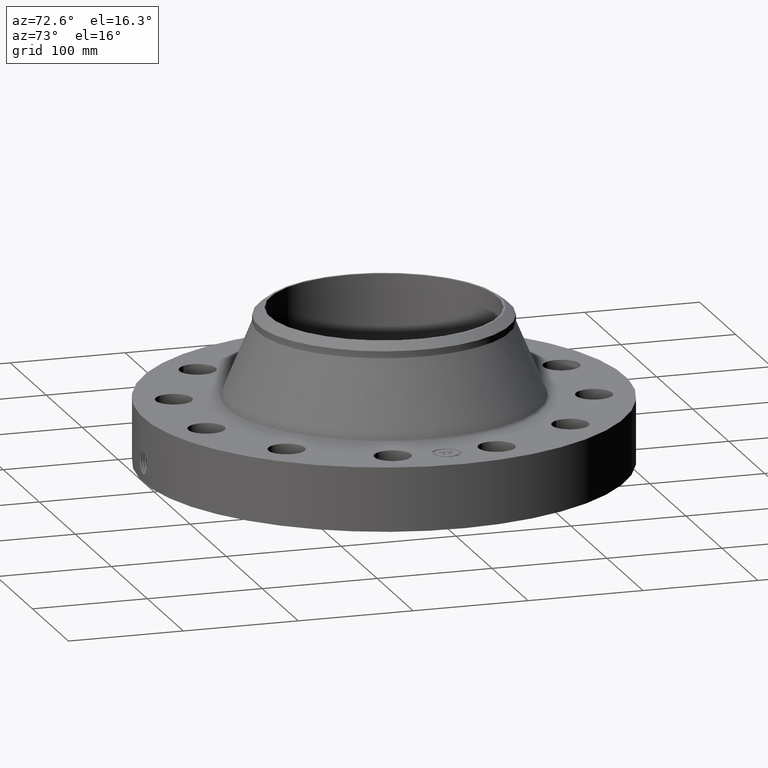
[diagram: clean part render]
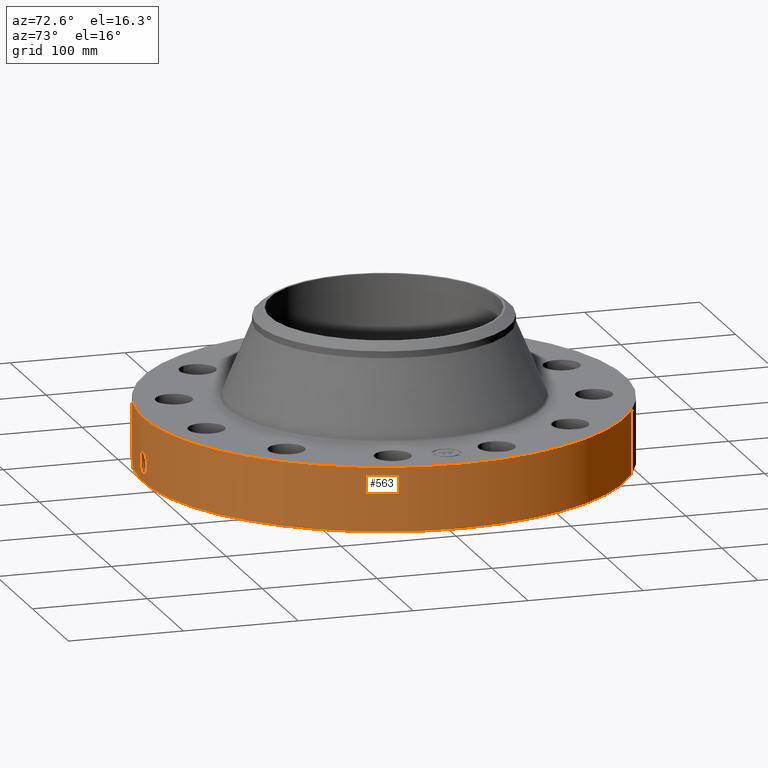
[diagram: same view with one face highlighted and labeled with its STEP entity id]
A machine part, auxiliary view. The second image highlights one B-rep face of the part: STEP entity #563.
In plain terms, the highlighted cylindrical surface (partial cylindrical patch) has radius 209.55 mm, axis along (0, 0, -1).
Its self-contained STEP definition (entity closure, byte-faithful):
#38=AXIS2_PLACEMENT_3D('Cylinder Axis2P3D',#35,#36,#37) ;
#169=AXIS2_PLACEMENT_3D('Circle Axis2P3D',#167,#168,$) ;
#467=AXIS2_PLACEMENT_3D('Circle Axis2P3D',#465,#466,$) ;
#35=CARTESIAN_POINT('Axis2P3D Location',(0.,0.,2.87500000001)) ;
#44=CARTESIAN_POINT('Vertex',(-3.9552606935,-7.24005613562,0.250000000001)) ;
#46=CARTESIAN_POINT('Vertex',(3.9552606935,7.24005613562,0.250000000001)) ;
#49=CARTESIAN_POINT('Line Origine',(-3.9552606935,-7.24005613562,1.34500000001)) ;
#53=CARTESIAN_POINT('Vertex',(-3.9552606935,-7.24005613562,2.44000000001)) ;
#60=CARTESIAN_POINT('Vertex',(3.9552606935,7.24005613562,2.44000000001)) ;
#63=CARTESIAN_POINT('Line Origine',(3.9552606935,7.24005613562,1.34500000001)) ;
#167=CARTESIAN_POINT('Axis2P3D Location',(0.,0.,0.250000000001)) ;
#465=CARTESIAN_POINT('Axis2P3D Location',(0.,0.,2.44000000001)) ;
#477=CARTESIAN_POINT('Control Point',(0.0585696128866,-8.24979209441,1.28923521611)) ;
#478=CARTESIAN_POINT('Control Point',(0.0394626526901,-8.24992774477,1.29244398859)) ;
#479=CARTESIAN_POINT('Control Point',(0.0200911592021,-8.24999828679,1.29407922484)) ;
#480=CARTESIAN_POINT('Control Point',(0.000716274479256,-8.24999996894,1.29411849877)) ;
#481=CARTESIAN_POINT('Vertex',(0.0585551594517,-8.24979245592,1.28923793039)) ;
#483=CARTESIAN_POINT('Vertex',(0.00071614293337,-8.24999996895,1.29411850921)) ;
#487=CARTESIAN_POINT('Control Point',(0.0585550548739,-8.24979219775,1.28923735404)) ;
#488=CARTESIAN_POINT('Control Point',(0.0977778610433,-8.24951380364,1.28434299913)) ;
#489=CARTESIAN_POINT('Control Point',(0.136232915897,-8.24895065119,1.27230088991)) ;
#490=CARTESIAN_POINT('Control Point',(0.171527588296,-8.24821667314,1.25401074387)) ;
#491=CARTESIAN_POINT('Vertex',(0.171527588296,-8.24821667314,1.25401074387)) ;
#495=CARTESIAN_POINT('Control Point',(0.0301661831778,-8.24994484842,0.531126499402)) ;
#496=CARTESIAN_POINT('Control Point',(0.0863158726556,-8.24973953531,0.53827173095)) ;
#497=CARTESIAN_POINT('Control Point',(0.140867393149,-8.24906236128,0.555888081743)) ;
#498=CARTESIAN_POINT('Control Point',(0.191063330913,-8.24797606518,0.583459203873)) ;
#499=CARTESIAN_POINT('Control Point',(0.264021348453,-8.24590958046,0.642874509219)) ;
#500=CARTESIAN_POINT('Control Point',(0.315833816603,-8.24398622769,0.719126077094)) ;
#501=CARTESIAN_POINT('Control Point',(0.332862825261,-8.2432996251,0.751799203192)) ;
#502=CARTESIAN_POINT('Control Point',(0.36822283739,-8.24181030791,0.843994369043)) ;
#503=CARTESIAN_POINT('Control Point',(0.374342967385,-8.24148913876,0.942643153853)) ;
#504=CARTESIAN_POINT('Control Point',(0.366209339775,-8.24188145626,1.00431542026)) ;
#505=CARTESIAN_POINT('Control Point',(0.333004984379,-8.24338775801,1.10218934415)) ;
#506=CARTESIAN_POINT('Control Point',(0.270471268152,-8.24562832491,1.18262256924)) ;
#507=CARTESIAN_POINT('Control Point',(0.240874299516,-8.24657783052,1.21132241964)) ;
#508=CARTESIAN_POINT('Control Point',(0.207549286232,-8.24746757606,1.23534384307)) ;
#509=CARTESIAN_POINT('Control Point',(0.171527588296,-8.24821667314,1.25401074387)) ;
#510=CARTESIAN_POINT('Vertex',(0.0301661831778,-8.24994484842,0.531126499402)) ;
#514=CARTESIAN_POINT('Control Point',(0.0301661831778,-8.24994484842,0.531126499402)) ;
#515=CARTESIAN_POINT('Control Point',(0.0201048323032,-8.24998163806,0.530865651291)) ;
#516=CARTESIAN_POINT('Control Point',(0.010038769677,-8.25000000335,0.530948524294)) ;
#517=CARTESIAN_POINT('Control Point',(-2.72878353728E-006,-8.25000000003,0.531374667805)) ;
#518=CARTESIAN_POINT('Vertex',(-2.72878353887E-006,-8.25000000003,0.531374667805)) ;
#522=CARTESIAN_POINT('Control Point',(-0.193376636571,-8.2477333539,0.586036260197)) ;
#523=CARTESIAN_POINT('Control Point',(-0.149296475202,-8.24876685886,0.561236554266)) ;
#524=CARTESIAN_POINT('Control Point',(-0.101176964589,-8.24958173649,0.54350144644)) ;
#525=CARTESIAN_POINT('Control Point',(-0.0508280469595,-8.24999998322,0.53353160539)) ;
#526=CARTESIAN_POINT('Control Point',(-2.72878353728E-006,-8.25000000003,0.531374667805)) ;
#527=CARTESIAN_POINT('Vertex',(-0.193376636571,-8.2477333539,0.586036260197)) ;
#531=CARTESIAN_POINT('Control Point',(-0.193376636571,-8.2477333539,0.586036260197)) ;
#532=CARTESIAN_POINT('Control Point',(-0.222475245683,-8.24705110692,0.602407273554)) ;
#533=CARTESIAN_POINT('Control Point',(-0.249928246363,-8.24627904485,0.621663590926)) ;
#534=CARTESIAN_POINT('Control Point',(-0.275330507789,-8.24545549083,0.643640136203)) ;
#535=CARTESIAN_POINT('Control Point',(-0.342403539939,-8.24304477496,0.715122773475)) ;
#536=CARTESIAN_POINT('Control Point',(-0.385376472243,-8.24103926985,0.804695804221)) ;
#537=CARTESIAN_POINT('Control Point',(-0.400616608865,-8.24025160308,0.869012310572)) ;
#538=CARTESIAN_POINT('Control Point',(-0.401714064006,-8.2402431258,0.983261200307)) ;
#539=CARTESIAN_POINT('Control Point',(-0.361790909741,-8.24209270966,1.08796883088)) ;
#540=CARTESIAN_POINT('Control Point',(-0.33760123949,-8.24316154871,1.12942392738)) ;
#541=CARTESIAN_POINT('Control Point',(-0.268614235745,-8.24586286825,1.21362504742)) ;
#542=CARTESIAN_POINT('Control Point',(-0.175473095031,-8.24840438088,1.26855126013)) ;
#543=CARTESIAN_POINT('Control Point',(-0.11801054163,-8.24948032514,1.28854420532)) ;
#544=CARTESIAN_POINT('Control Point',(-0.0585599402305,-8.25000018362,1.29702524082)) ;
#545=CARTESIAN_POINT('Control Point',(2.58579355367E-005,-8.24999999999,1.29415298433)) ;
#546=CARTESIAN_POINT('Vertex',(2.58579355329E-005,-8.24999999999,1.29415298433)) ;
#550=CARTESIAN_POINT('Control Point',(0.000716142923082,-8.24999996895,1.29411850919)) ;
#551=CARTESIAN_POINT('Control Point',(0.000371024410715,-8.24999999891,1.29413606204)) ;
#552=CARTESIAN_POINT('Control Point',(2.58579414898E-005,-8.24999999999,1.29415298433)) ;
#36=DIRECTION('Axis2P3D Direction',(0.,0.,-0.0393700787402)) ;
#37=DIRECTION('Axis2P3D XDirection',(0.0188750212049,0.0345504945626,0.)) ;
#50=DIRECTION('Vector Direction',(0.,0.,-0.0393700787402)) ;
#64=DIRECTION('Vector Direction',(0.,0.,-0.0393700787402)) ;
#168=DIRECTION('Axis2P3D Direction',(0.,0.,-0.0393700787402)) ;
#466=DIRECTION('Axis2P3D Direction',(0.,0.,-0.0393700787402)) ;
#51=VECTOR('Line Direction',#50,0.0393700787402) ;
#65=VECTOR('Line Direction',#64,0.0393700787402) ;
#471=ORIENTED_EDGE('',*,*,#171,.F.) ;
#472=ORIENTED_EDGE('',*,*,#67,.T.) ;
#473=ORIENTED_EDGE('',*,*,#469,.T.) ;
#474=ORIENTED_EDGE('',*,*,#55,.F.) ;
#555=ORIENTED_EDGE('',*,*,#485,.F.) ;
#556=ORIENTED_EDGE('',*,*,#493,.T.) ;
#557=ORIENTED_EDGE('',*,*,#512,.F.) ;
#558=ORIENTED_EDGE('',*,*,#520,.T.) ;
#559=ORIENTED_EDGE('',*,*,#529,.F.) ;
#560=ORIENTED_EDGE('',*,*,#548,.T.) ;
#561=ORIENTED_EDGE('',*,*,#553,.F.) ;
#562=FACE_BOUND('',#554,.T.) ;
#563=ADVANCED_FACE('PartBody',(#475,#562),#39,.T.) ;
#476=B_SPLINE_CURVE_WITH_KNOTS('',3,(#477,#478,#479,#480),.UNSPECIFIED.,.F.,.U.,(4,4),(4.37192351932,6.52139132838),.UNSPECIFIED.) ;
#486=B_SPLINE_CURVE_WITH_KNOTS('',3,(#487,#488,#489,#490),.UNSPECIFIED.,.F.,.U.,(4,4),(0.,4.44126858846),.UNSPECIFIED.) ;
#494=B_SPLINE_CURVE_WITH_KNOTS('',5,(#495,#496,#497,#498,#499,#500,#501,#502,#503,#504,#505,#506,#507,#508,#509),.UNSPECIFIED.,.F.,.U.,(6,3,3,3,6),(0.,9.83723213654,16.4175924971,27.5981636655,35.152752239),.UNSPECIFIED.) ;
#513=B_SPLINE_CURVE_WITH_KNOTS('',3,(#514,#515,#516,#517),.UNSPECIFIED.,.F.,.U.,(4,4),(0.,1.049454021),.UNSPECIFIED.) ;
#521=B_SPLINE_CURVE_WITH_KNOTS('',4,(#522,#523,#524,#525,#526),.UNSPECIFIED.,.F.,.U.,(5,5),(0.,7.0824535171),.UNSPECIFIED.) ;
#530=B_SPLINE_CURVE_WITH_KNOTS('',5,(#531,#532,#533,#534,#535,#536,#537,#538,#539,#540,#541,#542,#543,#544,#545),.UNSPECIFIED.,.F.,.U.,(6,3,3,3,6),(0.,5.84416938898,17.0877563742,25.535930987,36.4868313738),.UNSPECIFIED.) ;
#549=B_SPLINE_CURVE_WITH_KNOTS('',2,(#550,#551,#552),.UNSPECIFIED.,.F.,.U.,(3,3),(1.0499922076,1.07579971677),.UNSPECIFIED.) ;
#170=CIRCLE('generated circle',#169,8.25000000003) ;
#468=CIRCLE('generated circle',#467,8.25000000003) ;
#39=CYLINDRICAL_SURFACE('generated cylinder',#38,8.25000000003) ;
#55=EDGE_CURVE('',#45,#54,#52,.F.) ;
#67=EDGE_CURVE('',#47,#61,#66,.F.) ;
#171=EDGE_CURVE('',#47,#45,#170,.T.) ;
#469=EDGE_CURVE('',#61,#54,#468,.T.) ;
#485=EDGE_CURVE('',#482,#484,#476,.T.) ;
#493=EDGE_CURVE('',#482,#492,#486,.T.) ;
#512=EDGE_CURVE('',#511,#492,#494,.T.) ;
#520=EDGE_CURVE('',#511,#519,#513,.T.) ;
#529=EDGE_CURVE('',#528,#519,#521,.T.) ;
#548=EDGE_CURVE('',#528,#547,#530,.T.) ;
#553=EDGE_CURVE('',#484,#547,#549,.T.) ;
#470=EDGE_LOOP('',(#471,#472,#473,#474)) ;
#554=EDGE_LOOP('',(#555,#556,#557,#558,#559,#560,#561)) ;
#475=FACE_OUTER_BOUND('',#470,.T.) ;
#52=LINE('Line',#49,#51) ;
#66=LINE('Line',#63,#65) ;
#45=VERTEX_POINT('',#44) ;
#47=VERTEX_POINT('',#46) ;
#54=VERTEX_POINT('',#53) ;
#61=VERTEX_POINT('',#60) ;
#482=VERTEX_POINT('',#481) ;
#484=VERTEX_POINT('',#483) ;
#492=VERTEX_POINT('',#491) ;
#511=VERTEX_POINT('',#510) ;
#519=VERTEX_POINT('',#518) ;
#528=VERTEX_POINT('',#527) ;
#547=VERTEX_POINT('',#546) ;